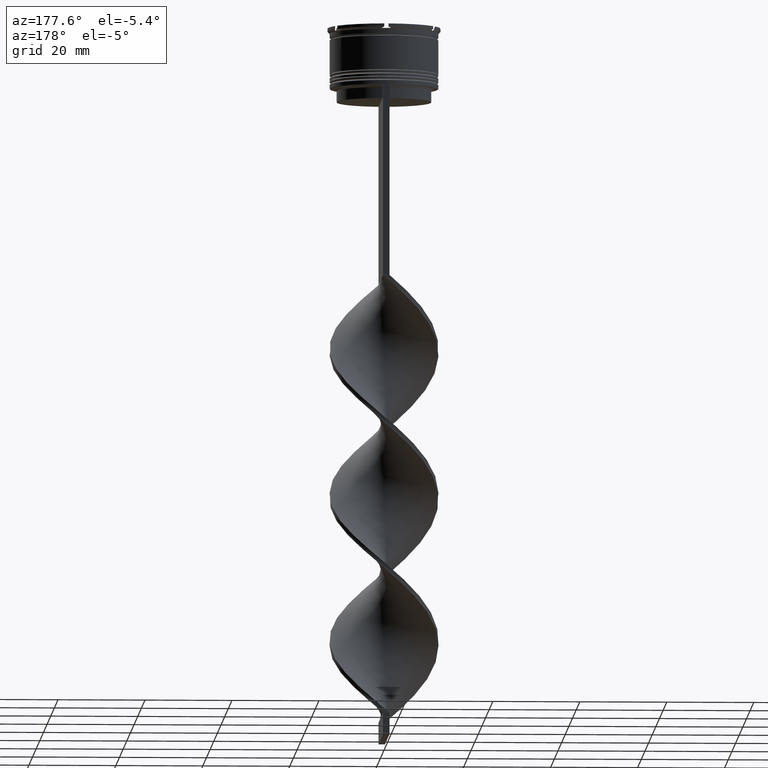
[diagram: clean part render]
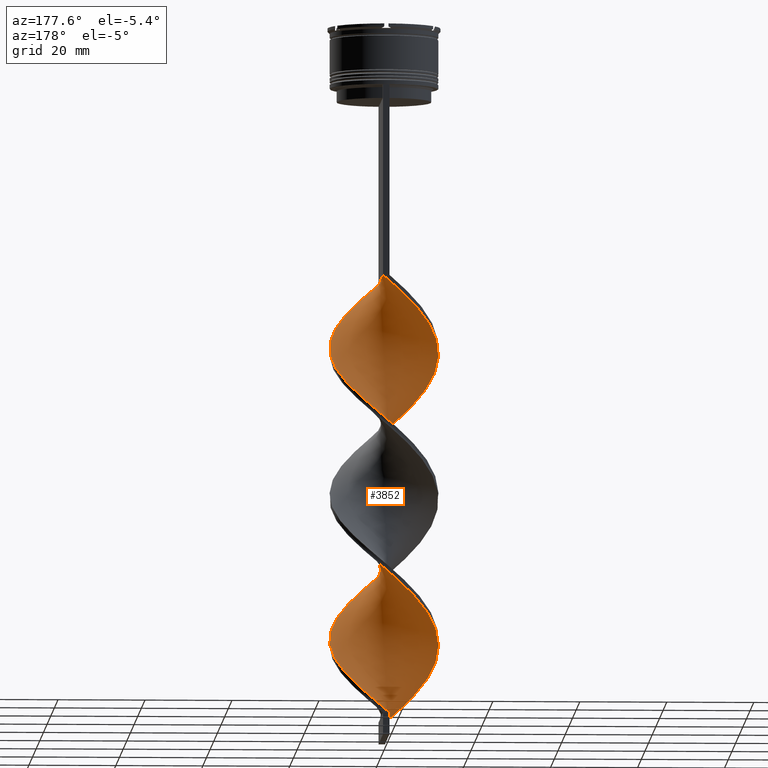
[diagram: same view with one face highlighted and labeled with its STEP entity id]
A machine part, auxiliary view. The second image highlights one B-rep face of the part: STEP entity #3852.
In plain terms, the highlighted face is a freeform B-spline surface patch.
Its self-contained STEP definition (entity closure, byte-faithful):
#7 = CARTESIAN_POINT ( 'NONE',  ( -8.787462363698281820, 8.921491198593773930, -134.3111111111111313 ) ) ;
#9 = CARTESIAN_POINT ( 'NONE',  ( 11.20031754730548279, -5.600480947161672773, -69.22222222222222854 ) ) ;
#12 = CARTESIAN_POINT ( 'NONE',  ( -6.740552907874707067, -10.55355136890619860, -118.6000000000000085 ) ) ;
#27 = CARTESIAN_POINT ( 'NONE',  ( 3.166767928522317810, -12.18672937812252499, -95.03333333333331723 ) ) ;
#29 = CARTESIAN_POINT ( 'NONE',  ( 12.35312734465267859, 2.052497212371872326, -75.95555555555554861 ) ) ;
#31 = CARTESIAN_POINT ( 'NONE',  ( 4.399048945215554340, 11.72437070283936045, -154.5111111111111200 ) ) ;
#45 = CARTESIAN_POINT ( 'NONE',  ( -3.166767928522319142, 12.18672937812252322, -128.7000000000000171 ) ) ;
#48 = CARTESIAN_POINT ( 'NONE',  ( -10.45031754730548279, 6.899519052838331667, -136.5555555555555713 ) ) ;
#51 = CARTESIAN_POINT ( 'NONE',  ( 8.970633266239079973, -8.835866163051415256, -133.1888888888889255 ) ) ;
#68 = CARTESIAN_POINT ( 'NONE',  ( -6.937523532635174739, -10.50788081788355832, -153.3888888888889142 ) ) ;
#70 = CARTESIAN_POINT ( 'NONE',  ( 11.78895181437690454, 4.423280136619385239, -112.9888888888888943 ) ) ;
#73 = CARTESIAN_POINT ( 'NONE',  ( 6.740552907874705291, 10.55355136890619860, -152.2666666666666799 ) ) ;
#85 = CARTESIAN_POINT ( 'NONE',  ( -0.7500000000000017764, -12.50000000000000000, -159.0000000000000000 ) ) ;
#87 = CARTESIAN_POINT ( 'NONE',  ( 0.7500000000000002220, -12.50000000000000000, -125.3333333333333570 ) ) ;
#106 = CARTESIAN_POINT ( 'NONE',  ( 12.50992003955415655, -0.5607143693194658329, -141.0444444444444514 ) ) ;
#130 = CARTESIAN_POINT ( 'NONE',  ( 5.769367131679453031, -11.11426573822566155, -129.8222222222222229 ) ) ;
#148 = CARTESIAN_POINT ( 'NONE',  ( -4.601210730723738429, -11.72065065856775767, -155.6333333333333542 ) ) ;
#150 = CARTESIAN_POINT ( 'NONE',  ( -12.11996919947063134, 3.149420042465479241, -105.1333333333333400 ) ) ;
#171 = CARTESIAN_POINT ( 'NONE',  ( 0.5638029408209590532, 12.57882817644926021, -90.54444444444445139 ) ) ;
#204 = CARTESIAN_POINT ( 'NONE',  ( -12.11996919947063134, 3.149420042465479241, -105.1333333333333400 ) ) ;
#222 = CARTESIAN_POINT ( 'NONE',  ( -0.7500000000000017764, -12.50000000000000000, -91.66666666666667140 ) ) ;
#225 = CARTESIAN_POINT ( 'NONE',  ( -4.601210730723734876, 11.72065065856775945, -95.03333333333331723 ) ) ;
#242 = CARTESIAN_POINT ( 'NONE',  ( 4.399048945215547235, -11.72437070283936400, -96.15555555555556566 ) ) ;
#262 = FACE_OUTER_BOUND ( 'NONE', #3630, .T. ) ;
#266 = CARTESIAN_POINT ( 'NONE',  ( 12.13740119476140045, 3.350863215071107515, -77.07777777777778283 ) ) ;
#278 = CARTESIAN_POINT ( 'NONE',  ( 4.399048945215554340, 11.72437070283936045, -154.5111111111111200 ) ) ;
#284 = CARTESIAN_POINT ( 'NONE',  ( -8.970633266239079973, -8.835866163051411704, -83.81111111111111711 ) ) ;
#288 = CARTESIAN_POINT ( 'NONE',  ( 7.954078399437126023, -9.671873490467488566, -64.73333333333333428 ) ) ;
#301 = CARTESIAN_POINT ( 'NONE',  ( 0.7500000000000002220, 12.50000000000000000, -125.3333333333333570 ) ) ;
#322 = CARTESIAN_POINT ( 'NONE',  ( 11.65644370790820794, -4.576004816908210593, -105.1333333333333400 ) ) ;
#325 = CARTESIAN_POINT ( 'NONE',  ( -11.17548622105502254, 5.801146418745307898, -137.6777777777777487 ) ) ;
#339 = CARTESIAN_POINT ( 'NONE',  ( -0.7500000000000017764, -12.50000000000000000, -159.0000000000000000 ) ) ;
#343 = CARTESIAN_POINT ( 'NONE',  ( -11.20031754730548457, -5.600480947161668333, -147.7777777777777715 ) ) ;
#345 = CARTESIAN_POINT ( 'NONE',  ( 12.11996919947063134, -3.149420042465478353, -71.46666666666668277 ) ) ;
#347 = CARTESIAN_POINT ( 'NONE',  ( -8.787462363698288925, -8.921491198593770378, -116.3555555555555685 ) ) ;
#361 = CARTESIAN_POINT ( 'NONE',  ( 10.45031754730548101, -6.899519052838334332, -102.8888888888888857 ) ) ;
#363 = CARTESIAN_POINT ( 'NONE',  ( -4.601210730723739317, -11.72065065856775945, -155.6333333333333258 ) ) ;
#365 = CARTESIAN_POINT ( 'NONE',  ( 2.063802940820955723, -12.42117182355074334, -126.4555555555555770 ) ) ;
#382 = CARTESIAN_POINT ( 'NONE',  ( 9.791158273236577614, 7.806773960377676680, -116.3555555555555685 ) ) ;
#386 = CARTESIAN_POINT ( 'NONE',  ( -3.166767928522322251, -12.18672937812252322, -121.9666666666666544 ) ) ;
#403 = CARTESIAN_POINT ( 'NONE',  ( -5.769367131679456584, -11.11426573822565977, -154.5111111111111200 ) ) ;
#418 = CARTESIAN_POINT ( 'NONE',  ( -3.332506835772350851, -12.07091124105925140, -156.7555555555555600 ) ) ;
#420 = CARTESIAN_POINT ( 'NONE',  ( -7.954078399437124247, 9.671873490467490342, -98.40000000000001990 ) ) ;
#433 = EDGE_CURVE ( 'NONE', #729, #3019, #2523, .T. ) ;
#440 = CARTESIAN_POINT ( 'NONE',  ( -5.631329961908790871, -11.26201202755619768, -119.7222222222222143 ) ) ;
#463 = CARTESIAN_POINT ( 'NONE',  ( 9.791158273236570508, -7.806773960377682009, -134.3111111111111313 ) ) ;
#482 = CARTESIAN_POINT ( 'NONE',  ( 6.740552907874705291, 10.55355136890619860, -84.93333333333333712 ) ) ;
#503 = CARTESIAN_POINT ( 'NONE',  ( -8.787462363698288925, -8.921491198593770378, -116.3555555555555685 ) ) ;
#504 = CARTESIAN_POINT ( 'NONE',  ( -12.50992003955415832, -0.5607143693194613920, -75.95555555555554861 ) ) ;
#513 = CARTESIAN_POINT ( 'NONE',  ( -0.7499999999999986677, 12.50000000000000000, -91.66666666666667140 ) ) ;
#530 = CARTESIAN_POINT ( 'NONE',  ( -5.769367131679456584, -11.11426573822565977, -87.17777777777779136 ) ) ;
#535 = CARTESIAN_POINT ( 'NONE',  ( -11.65644370790820972, -4.576004816908206152, -111.8666666666666742 ) ) ;
#555 = CARTESIAN_POINT ( 'NONE',  ( 0.7500000000000002220, -12.50000000000000000, -58.00000000000000000 ) ) ;
#569 = CARTESIAN_POINT ( 'NONE',  ( -8.787462363698281820, 8.921491198593773930, -66.97777777777777430 ) ) ;
#576 = CARTESIAN_POINT ( 'NONE',  ( 2.063802940820955723, -12.42117182355074334, -59.12222222222222712 ) ) ;
#591 = CARTESIAN_POINT ( 'NONE',  ( -12.56885349454395495, 0.7541312096726383585, -74.83333333333332860 ) ) ;
#599 = CARTESIAN_POINT ( 'NONE',  ( -12.13740119476140222, -3.350863215071100409, -110.7444444444444542 ) ) ;
#612 = CARTESIAN_POINT ( 'NONE',  ( -11.17548622105502076, 5.801146418745308786, -137.6777777777777487 ) ) ;
#614 = VERTEX_POINT ( 'NONE', #1421 ) ;
#616 = CARTESIAN_POINT ( 'NONE',  ( -9.725148873555946594, 7.997891686931353661, -68.10000000000002274 ) ) ;
#620 = CARTESIAN_POINT ( 'NONE',  ( 12.50992003955415655, -0.5607143693194658329, -141.0444444444444514 ) ) ;
#632 = CARTESIAN_POINT ( 'NONE',  ( 10.61168328023406815, 6.777681757703947873, -115.2333333333333343 ) ) ;
#634 = CARTESIAN_POINT ( 'NONE',  ( -7.849775853840620599, 9.845090710256195976, -133.1888888888889255 ) ) ;
#639 = CARTESIAN_POINT ( 'NONE',  ( -1.865285434671644094, -12.38277877728589083, -123.0888888888888886 ) ) ;
#651 = CARTESIAN_POINT ( 'NONE',  ( 4.601210730723740205, 11.72065065856775767, -121.9666666666666544 ) ) ;
#653 = CARTESIAN_POINT ( 'NONE',  ( 3.332506835772352627, 12.07091124105925140, -123.0888888888888886 ) ) ;
#670 = CARTESIAN_POINT ( 'NONE',  ( 3.332506835772352627, 12.07091124105925140, -123.0888888888888886 ) ) ;
#672 = CARTESIAN_POINT ( 'NONE',  ( -12.45098658456435992, -1.875559948311561920, -144.4111111111111541 ) ) ;
#675 = CARTESIAN_POINT ( 'NONE',  ( 12.35312734465267859, 2.052497212371872326, -143.2888888888889198 ) ) ;
#690 = CARTESIAN_POINT ( 'NONE',  ( -3.332506835772350851, -12.07091124105925140, -89.42222222222223138 ) ) ;
#692 = CARTESIAN_POINT ( 'NONE',  ( 7.954078399437128688, 9.671873490467486789, -118.6000000000000085 ) ) ;
#694 = CARTESIAN_POINT ( 'NONE',  ( 11.20031754730548279, -5.600480947161672773, -136.5555555555555713 ) ) ;
#712 = CARTESIAN_POINT ( 'NONE',  ( -12.13740119476139867, 3.350863215071111512, -139.9222222222222172 ) ) ;
#729 = VERTEX_POINT ( 'NONE', #3746 ) ;
#731 = CARTESIAN_POINT ( 'NONE',  ( -5.769367131679449479, 11.11426573822566333, -96.15555555555556566 ) ) ;
#749 = CARTESIAN_POINT ( 'NONE',  ( 8.970633266239079973, -8.835866163051415256, -133.1888888888889255 ) ) ;
#768 = CARTESIAN_POINT ( 'NONE',  ( -12.50992003955415832, 0.5607143693194728273, -107.3777777777777942 ) ) ;
#791 = CARTESIAN_POINT ( 'NONE',  ( -9.791158273236570508, 7.806773960377685562, -100.6444444444444599 ) ) ;
#812 = CARTESIAN_POINT ( 'NONE',  ( -3.166767928522322251, -12.18672937812252499, -121.9666666666666544 ) ) ;
#833 = EDGE_CURVE ( 'NONE', #614, #1149, #2553, .T. ) ;
#835 = CARTESIAN_POINT ( 'NONE',  ( -11.20031754730548457, -5.600480947161668333, -80.44444444444445708 ) ) ;
#838 = CARTESIAN_POINT ( 'NONE',  ( 11.17548622105501721, -5.801146418745314115, -104.0111111111111200 ) ) ;
#843 = CARTESIAN_POINT ( 'NONE',  ( 10.61168328023406637, -6.777681757703950538, -68.10000000000000853 ) ) ;
#859 = CARTESIAN_POINT ( 'NONE',  ( -5.631329961908784654, 11.26201202755620479, -63.61111111111112137 ) ) ;
#862 = CARTESIAN_POINT ( 'NONE',  ( 12.35312734465267503, -2.052497212371882984, -107.3777777777777942 ) ) ;
#867 = CARTESIAN_POINT ( 'NONE',  ( 9.725148873555948370, 7.997891686931350108, -81.56666666666666288 ) ) ;
#881 = CARTESIAN_POINT ( 'NONE',  ( -6.740552907874703514, 10.55355136890620038, -64.73333333333333428 ) ) ;
#884 = CARTESIAN_POINT ( 'NONE',  ( -8.970633266239076420, 8.835866163051417033, -99.52222222222223991 ) ) ;
#901 = CARTESIAN_POINT ( 'NONE',  ( -1.865285434671636988, 12.38277877728589260, -60.24444444444444713 ) ) ;
#905 = CARTESIAN_POINT ( 'NONE',  ( -6.937523532635168522, 10.50788081788356365, -97.27777777777779988 ) ) ;
#920 = CARTESIAN_POINT ( 'NONE',  ( 6.740552907874702626, -10.55355136890619860, -98.40000000000001990 ) ) ;
#924 = CARTESIAN_POINT ( 'NONE',  ( 6.740552907874702626, -10.55355136890619860, -98.40000000000001990 ) ) ;
#943 = CARTESIAN_POINT ( 'NONE',  ( -7.954078399437126912, -9.671873490467486789, -152.2666666666666799 ) ) ;
#946 = CARTESIAN_POINT ( 'NONE',  ( 9.791158273236570508, -7.806773960377682009, -66.97777777777777430 ) ) ;
#960 = CARTESIAN_POINT ( 'NONE',  ( 9.791158273236577614, 7.806773960377676680, -116.3555555555555685 ) ) ;
#963 = CARTESIAN_POINT ( 'NONE',  ( -9.791158273236575837, -7.806773960377678456, -150.0222222222222115 ) ) ;
#965 = CARTESIAN_POINT ( 'NONE',  ( 7.849775853840625039, 9.845090710256192423, -151.1444444444444457 ) ) ;
#979 = CARTESIAN_POINT ( 'NONE',  ( -6.740552907874703514, 10.55355136890620038, -132.0666666666666629 ) ) ;
#981 = CARTESIAN_POINT ( 'NONE',  ( -6.740552907874703514, 10.55355136890620038, -132.0666666666666629 ) ) ;
#985 = CARTESIAN_POINT ( 'NONE',  ( 11.78895181437690276, -4.423280136619393232, -137.6777777777777487 ) ) ;
#1001 = CARTESIAN_POINT ( 'NONE',  ( -12.13740119476139867, 3.350863215071111512, -139.9222222222222172 ) ) ;
#1003 = CARTESIAN_POINT ( 'NONE',  ( -10.61168328023406815, -6.777681757703948762, -148.8999999999999488 ) ) ;
#1004 = DIRECTION ( 'NONE',  ( 0.000000000000000000, 1.000000000000000000, 0.000000000000000000 ) ) ;
#1005 = CARTESIAN_POINT ( 'NONE',  ( -10.45031754730548812, -6.899519052838321009, -114.1111111111111285 ) ) ;
#1023 = CARTESIAN_POINT ( 'NONE',  ( -11.78895181437690276, -4.423280136619389680, -146.6555555555555657 ) ) ;
#1040 = CARTESIAN_POINT ( 'NONE',  ( 12.45098658456436169, -1.875559948311565917, -139.9222222222222172 ) ) ;
#1061 = CARTESIAN_POINT ( 'NONE',  ( 8.787462363698287149, 8.921491198593770378, -82.68888888888889710 ) ) ;
#1082 = CARTESIAN_POINT ( 'NONE',  ( -12.35312734465267859, -2.052497212371867885, -109.6222222222222342 ) ) ;
#1104 = CARTESIAN_POINT ( 'NONE',  ( -10.45031754730548812, -6.899519052838321009, -114.1111111111111285 ) ) ;
#1126 = CARTESIAN_POINT ( 'NONE',  ( -11.78895181437689743, 4.423280136619401226, -104.0111111111111200 ) ) ;
#1128 = CARTESIAN_POINT ( 'NONE',  ( -10.45031754730548279, 6.899519052838331667, -69.22222222222222854 ) ) ;
#1148 = CARTESIAN_POINT ( 'NONE',  ( -11.78895181437690276, -4.423280136619389680, -79.32222222222222285 ) ) ;
#1149 = VERTEX_POINT ( 'NONE', #1477 ) ;
#1156 = CARTESIAN_POINT ( 'NONE',  ( -12.45098658456436169, 1.875559948311569913, -106.2555555555555742 ) ) ;
#1174 = CARTESIAN_POINT ( 'NONE',  ( 11.65644370790820794, -4.576004816908210593, -105.1333333333333400 ) ) ;
#1178 = CARTESIAN_POINT ( 'NONE',  ( -12.56885349454395495, -0.7541312096726352499, -108.5000000000000000 ) ) ;
#1197 = CARTESIAN_POINT ( 'NONE',  ( -3.166767928522319142, 12.18672937812252499, -61.36666666666666003 ) ) ;
#1200 = CARTESIAN_POINT ( 'NONE',  ( 11.17548622105502076, 5.801146418745305233, -79.32222222222222285 ) ) ;
#1212 = CARTESIAN_POINT ( 'NONE',  ( -4.399048945215550788, 11.72437070283936222, -62.48888888888889426 ) ) ;
#1219 = CARTESIAN_POINT ( 'NONE',  ( -11.78895181437689743, 4.423280136619400338, -104.0111111111111057 ) ) ;
#1232 = CARTESIAN_POINT ( 'NONE',  ( 11.78895181437690454, 4.423280136619385239, -112.9888888888888943 ) ) ;
#1235 = CARTESIAN_POINT ( 'NONE',  ( 0.5638029408209505045, -12.57882817644926376, -92.78888888888889142 ) ) ;
#1238 = CARTESIAN_POINT ( 'NONE',  ( 7.849775853840625039, 9.845090710256192423, -83.81111111111111711 ) ) ;
#1253 = CARTESIAN_POINT ( 'NONE',  ( 8.787462363698281820, -8.921491198593777483, -100.6444444444444599 ) ) ;
#1255 = VECTOR ( 'NONE', #1004, 1000.000000000000000 ) ;
#1258 = CARTESIAN_POINT ( 'NONE',  ( 6.937523532635172074, -10.50788081788356187, -63.61111111111111427 ) ) ;
#1277 = CARTESIAN_POINT ( 'NONE',  ( -9.725148873555948370, 7.997891686931351884, -135.4333333333333371 ) ) ;
#1279 = CARTESIAN_POINT ( 'NONE',  ( 11.20031754730548812, 5.600480947161662115, -114.1111111111111285 ) ) ;
#1282 = CARTESIAN_POINT ( 'NONE',  ( 5.769367131679453031, -11.11426573822566155, -129.8222222222222229 ) ) ;
#1294 = CARTESIAN_POINT ( 'NONE',  ( -12.35312734465267681, 2.052497212371875879, -141.0444444444444514 ) ) ;
#1296 = CARTESIAN_POINT ( 'NONE',  ( 12.13740119476140045, 3.350863215071107515, -77.07777777777778283 ) ) ;
#1299 = CARTESIAN_POINT ( 'NONE',  ( 3.166767928522320474, 12.18672937812252322, -155.6333333333333542 ) ) ;
#1315 = CARTESIAN_POINT ( 'NONE',  ( 0.5638029408209503934, -12.57882817644926199, -92.78888888888889142 ) ) ;
#1317 = CARTESIAN_POINT ( 'NONE',  ( 12.56885349454395495, -0.7541312096726399128, -108.5000000000000000 ) ) ;
#1323 = CARTESIAN_POINT ( 'NONE',  ( 12.11996919947063134, -3.149420042465478353, -138.8000000000000114 ) ) ;
#1340 = CARTESIAN_POINT ( 'NONE',  ( -11.20031754730548457, -5.600480947161668333, -147.7777777777777715 ) ) ;
#1356 = CARTESIAN_POINT ( 'NONE',  ( -12.56885349454395495, -0.7541312096726353609, -108.5000000000000000 ) ) ;
#1374 = CARTESIAN_POINT ( 'NONE',  ( 10.45031754730548457, 6.899519052838327227, -80.44444444444445708 ) ) ;
#1397 = CARTESIAN_POINT ( 'NONE',  ( 12.35312734465267859, 2.052497212371872326, -143.2888888888889198 ) ) ;
#1419 = CARTESIAN_POINT ( 'NONE',  ( 9.725148873555946594, 7.997891686931350996, -148.8999999999999488 ) ) ;
#1421 = CARTESIAN_POINT ( 'NONE',  ( 0.7500000000000002220, 12.50000000000000000, -58.00000000000000000 ) ) ;
#1441 = CARTESIAN_POINT ( 'NONE',  ( -12.45098658456436169, 1.875559948311569691, -106.2555555555555742 ) ) ;
#1468 = CARTESIAN_POINT ( 'NONE',  ( 1.865285434671642317, 12.38277877728589083, -156.7555555555555600 ) ) ;
#1475 = CARTESIAN_POINT ( 'NONE',  ( 11.78895181437690276, -4.423280136619393232, -70.34444444444444855 ) ) ;
#1477 = CARTESIAN_POINT ( 'NONE',  ( -0.7500000000000017764, -12.50000000000000000, -159.0000000000000000 ) ) ;
#1491 = CARTESIAN_POINT ( 'NONE',  ( 5.631329961908781989, -11.26201202755620479, -97.27777777777778567 ) ) ;
#1495 = CARTESIAN_POINT ( 'NONE',  ( 3.332506835772345966, -12.07091124105925317, -60.24444444444444713 ) ) ;
#1512 = CARTESIAN_POINT ( 'NONE',  ( 8.787462363698281820, -8.921491198593777483, -100.6444444444444599 ) ) ;
#1527 = CARTESIAN_POINT ( 'NONE',  ( 8.787462363698287149, 8.921491198593770378, -150.0222222222222115 ) ) ;
#1534 = CARTESIAN_POINT ( 'NONE',  ( -8.787462363698281820, 8.921491198593773930, -66.97777777777777430 ) ) ;
#1554 = CARTESIAN_POINT ( 'NONE',  ( -0.7500000000000017764, -12.50000000000000000, -91.66666666666667140 ) ) ;
#1557 = CARTESIAN_POINT ( 'NONE',  ( -7.954078399437126912, -9.671873490467486789, -84.93333333333333712 ) ) ;
#1561 = CARTESIAN_POINT ( 'NONE',  ( 4.399048945215554340, 11.72437070283936045, -87.17777777777779136 ) ) ;
#1573 = CARTESIAN_POINT ( 'NONE',  ( -11.78895181437690276, -4.423280136619389680, -146.6555555555555657 ) ) ;
#1597 = CARTESIAN_POINT ( 'NONE',  ( -6.937523532635174739, -10.50788081788355832, -86.05555555555557135 ) ) ;
#1599 = CARTESIAN_POINT ( 'NONE',  ( 2.063802940820956167, -12.42117182355074334, -59.12222222222222712 ) ) ;
#1616 = CARTESIAN_POINT ( 'NONE',  ( -12.50992003955415832, -0.5607143693194613920, -143.2888888888889198 ) ) ;
#1618 = CARTESIAN_POINT ( 'NONE',  ( 12.50992003955415655, -0.5607143693194658329, -73.71111111111112280 ) ) ;
#1620 = CARTESIAN_POINT ( 'NONE',  ( 12.45098658456436169, -1.875559948311565694, -139.9222222222222172 ) ) ;
#1627 = CARTESIAN_POINT ( 'NONE',  ( -0.7499999999999986677, 12.50000000000000000, -159.0000000000000000 ) ) ;
#1632 = CARTESIAN_POINT ( 'NONE',  ( -4.601210730723738429, -11.72065065856775767, -88.29999999999998295 ) ) ;
#1634 = CARTESIAN_POINT ( 'NONE',  ( -1.865285434671636988, 12.38277877728589260, -127.5777777777777828 ) ) ;
#1636 = CARTESIAN_POINT ( 'NONE',  ( -11.17548622105502254, -5.801146418745300792, -112.9888888888888943 ) ) ;
#1653 = CARTESIAN_POINT ( 'NONE',  ( -0.5638029408209555005, 12.57882817644926021, -126.4555555555555628 ) ) ;
#1673 = CARTESIAN_POINT ( 'NONE',  ( 5.769367131679453031, -11.11426573822566155, -62.48888888888889426 ) ) ;
#1692 = CARTESIAN_POINT ( 'NONE',  ( -9.725148873555948370, -7.997891686931350996, -115.2333333333333343 ) ) ;
#1713 = CARTESIAN_POINT ( 'NONE',  ( 1.865285434671642317, 12.38277877728589083, -89.42222222222223138 ) ) ;
#1736 = CARTESIAN_POINT ( 'NONE',  ( 11.17548622105502254, 5.801146418745304345, -146.6555555555555657 ) ) ;
#1758 = CARTESIAN_POINT ( 'NONE',  ( 7.849775853840625039, 9.845090710256194200, -83.81111111111111711 ) ) ;
#1779 = CARTESIAN_POINT ( 'NONE',  ( -7.849775853840630369, -9.845090710256190647, -117.4777777777777885 ) ) ;
#1781 = CARTESIAN_POINT ( 'NONE',  ( -12.45098658456435992, -1.875559948311561920, -77.07777777777778283 ) ) ;
#1789 = CARTESIAN_POINT ( 'NONE',  ( -10.61168328023406460, 6.777681757703952314, -101.7666666666666515 ) ) ;
#1803 = CARTESIAN_POINT ( 'NONE',  ( 6.740552907874705291, 10.55355136890619860, -152.2666666666666799 ) ) ;
#1827 = CARTESIAN_POINT ( 'NONE',  ( 1.865285434671633880, -12.38277877728589260, -93.91111111111111143 ) ) ;
#1831 = CARTESIAN_POINT ( 'NONE',  ( 9.791158273236570508, -7.806773960377682009, -66.97777777777777430 ) ) ;
#1845 = CARTESIAN_POINT ( 'NONE',  ( -0.5638029408209555005, 12.57882817644925844, -59.12222222222222712 ) ) ;
#1852 = CARTESIAN_POINT ( 'NONE',  ( 5.769367131679453031, -11.11426573822566155, -62.48888888888889426 ) ) ;
#1872 = CARTESIAN_POINT ( 'NONE',  ( -10.61168328023406815, -6.777681757703948762, -81.56666666666664867 ) ) ;
#1888 = CARTESIAN_POINT ( 'NONE',  ( -12.45098658456435992, -1.875559948311561920, -144.4111111111111256 ) ) ;
#1893 = CARTESIAN_POINT ( 'NONE',  ( -3.332506835772350851, -12.07091124105925140, -89.42222222222223138 ) ) ;
#1896 = CARTESIAN_POINT ( 'NONE',  ( -4.399048945215561446, -11.72437070283935689, -120.8444444444444485 ) ) ;
#1908 = CARTESIAN_POINT ( 'NONE',  ( 2.063802940820966825, 12.42117182355074334, -124.2111111111111370 ) ) ;
#1911 = CARTESIAN_POINT ( 'NONE',  ( -12.56885349454395495, 0.7541312096726383585, -142.1666666666666856 ) ) ;
#1915 = CARTESIAN_POINT ( 'NONE',  ( 5.631329961908789983, 11.26201202755619946, -153.3888888888889142 ) ) ;
#1929 = CARTESIAN_POINT ( 'NONE',  ( -10.61168328023406637, -6.777681757703948762, -81.56666666666666288 ) ) ;
#1932 = CARTESIAN_POINT ( 'NONE',  ( 0.7500000000000002220, 12.50000000000000000, -125.3333333333333570 ) ) ;
#1935 = CARTESIAN_POINT ( 'NONE',  ( 12.56885349454395495, 0.7541312096726368042, -142.1666666666666856 ) ) ;
#1948 = CARTESIAN_POINT ( 'NONE',  ( -0.5638029408209555005, 12.57882817644925844, -126.4555555555555770 ) ) ;
#1950 = CARTESIAN_POINT ( 'NONE',  ( 10.61168328023406993, 6.777681757703947873, -115.2333333333333343 ) ) ;
#1952 = CARTESIAN_POINT ( 'NONE',  ( 11.17548622105502076, 5.801146418745305233, -146.6555555555555657 ) ) ;
#1969 = CARTESIAN_POINT ( 'NONE',  ( 12.35312734465267503, -2.052497212371882984, -107.3777777777777942 ) ) ;
#1971 = CARTESIAN_POINT ( 'NONE',  ( -11.65644370790820794, 4.576004816908208817, -138.8000000000000114 ) ) ;
#1973 = CARTESIAN_POINT ( 'NONE',  ( 8.787462363698287149, 8.921491198593770378, -150.0222222222222115 ) ) ;
#1992 = CARTESIAN_POINT ( 'NONE',  ( 3.332506835772345966, -12.07091124105925317, -60.24444444444444713 ) ) ;
#2008 = CARTESIAN_POINT ( 'NONE',  ( -8.970633266239076420, 8.835866163051417033, -99.52222222222223991 ) ) ;
#2030 = CARTESIAN_POINT ( 'NONE',  ( 3.332506835772345966, -12.07091124105925317, -127.5777777777777828 ) ) ;
#2052 = CARTESIAN_POINT ( 'NONE',  ( -11.65644370790820972, -4.576004816908206152, -111.8666666666666742 ) ) ;
#2076 = CARTESIAN_POINT ( 'NONE',  ( 7.954078399437126023, -9.671873490467488566, -132.0666666666666629 ) ) ;
#2099 = CARTESIAN_POINT ( 'NONE',  ( -1.865285434671644094, -12.38277877728589083, -123.0888888888888886 ) ) ;
#2107 = CARTESIAN_POINT ( 'NONE',  ( 8.970633266239079973, -8.835866163051415256, -65.85555555555555429 ) ) ;
#2126 = CARTESIAN_POINT ( 'NONE',  ( -10.45031754730548279, 6.899519052838331667, -69.22222222222222854 ) ) ;
#2130 = CARTESIAN_POINT ( 'NONE',  ( 12.50992003955415655, -0.5607143693194658329, -73.71111111111112280 ) ) ;
#2144 = CARTESIAN_POINT ( 'NONE',  ( -0.7499999999999986677, 12.50000000000000000, -159.0000000000000000 ) ) ;
#2149 = CARTESIAN_POINT ( 'NONE',  ( -12.56885349454395495, 0.7541312096726383585, -74.83333333333334281 ) ) ;
#2169 = CARTESIAN_POINT ( 'NONE',  ( -11.20031754730548457, -5.600480947161668333, -80.44444444444445708 ) ) ;
#2172 = CARTESIAN_POINT ( 'NONE',  ( -9.791158273236570508, 7.806773960377685562, -100.6444444444444599 ) ) ;
#2184 = CARTESIAN_POINT ( 'NONE',  ( -11.17548622105502076, 5.801146418745308786, -70.34444444444444855 ) ) ;
#2210 = CARTESIAN_POINT ( 'NONE',  ( -5.631329961908784654, 11.26201202755620479, -130.9444444444444571 ) ) ;
#2213 = CARTESIAN_POINT ( 'NONE',  ( -11.65644370790820794, 4.576004816908208817, -71.46666666666668277 ) ) ;
#2218 = CARTESIAN_POINT ( 'NONE',  ( -9.725148873555948370, -7.997891686931350108, -115.2333333333333343 ) ) ;
#2228 = CARTESIAN_POINT ( 'NONE',  ( 1.865285434671633880, -12.38277877728589260, -93.91111111111111143 ) ) ;
#2230 = CARTESIAN_POINT ( 'NONE',  ( -0.7500000000000017764, -12.50000000000000000, -159.0000000000000000 ) ) ;
#2245 = CARTESIAN_POINT ( 'NONE',  ( 8.970633266239085302, 8.835866163051404598, -117.4777777777777885 ) ) ;
#2247 = CARTESIAN_POINT ( 'NONE',  ( 4.601210730723737541, -11.72065065856775945, -61.36666666666666003 ) ) ;
#2265 = CARTESIAN_POINT ( 'NONE',  ( -7.954078399437126912, -9.671873490467486789, -84.93333333333333712 ) ) ;
#2268 = CARTESIAN_POINT ( 'NONE',  ( -12.35312734465267681, 2.052497212371875879, -141.0444444444444514 ) ) ;
#2287 = CARTESIAN_POINT ( 'NONE',  ( 9.725148873555946594, -7.997891686931353661, -101.7666666666666515 ) ) ;
#2289 = CARTESIAN_POINT ( 'NONE',  ( 2.063802940820966825, 12.42117182355074334, -124.2111111111111370 ) ) ;
#2291 = CARTESIAN_POINT ( 'NONE',  ( 6.937523532635171186, -10.50788081788356187, -130.9444444444444571 ) ) ;
#2308 = CARTESIAN_POINT ( 'NONE',  ( -2.063802940820959275, -12.42117182355074334, -157.8777777777777942 ) ) ;
#2329 = CARTESIAN_POINT ( 'NONE',  ( -2.063802940820951726, 12.42117182355074689, -92.78888888888889142 ) ) ;
#2348 = CARTESIAN_POINT ( 'NONE',  ( -6.740552907874707067, -10.55355136890619860, -118.6000000000000085 ) ) ;
#2367 = CARTESIAN_POINT ( 'NONE',  ( -6.937523532635169410, 10.50788081788356365, -97.27777777777778567 ) ) ;
#2387 = CARTESIAN_POINT ( 'NONE',  ( -2.063802940820959275, -12.42117182355074334, -157.8777777777777942 ) ) ;
#2389 = CARTESIAN_POINT ( 'NONE',  ( 5.631329961908789983, 11.26201202755619768, -86.05555555555557135 ) ) ;
#2411 = CARTESIAN_POINT ( 'NONE',  ( 11.17548622105502254, 5.801146418745304345, -79.32222222222222285 ) ) ;
#2412 = CARTESIAN_POINT ( 'NONE',  ( -11.65644370790820794, 4.576004816908208817, -71.46666666666668277 ) ) ;
#2437 = CARTESIAN_POINT ( 'NONE',  ( 9.725148873555944817, -7.997891686931354549, -101.7666666666666515 ) ) ;
#2441 = CARTESIAN_POINT ( 'NONE',  ( -12.50992003955415832, 0.5607143693194728273, -107.3777777777777942 ) ) ;
#2463 = CARTESIAN_POINT ( 'NONE',  ( -12.35312734465267859, -2.052497212371867885, -109.6222222222222342 ) ) ;
#2470 = CARTESIAN_POINT ( 'NONE',  ( -0.7500000000000007772, -4.166666666666667851, -159.0000000000000000 ) ) ;
#2479 = CARTESIAN_POINT ( 'NONE',  ( -12.13740119476139867, 3.350863215071111512, -72.58888888888890278 ) ) ;
#2483 = CARTESIAN_POINT ( 'NONE',  ( 6.740552907874705291, 10.55355136890619860, -84.93333333333333712 ) ) ;
#2498 = CARTESIAN_POINT ( 'NONE',  ( -4.399048945215550788, 11.72437070283936222, -62.48888888888889426 ) ) ;
#2511 = EDGE_CURVE ( 'NONE', #729, #614, #3230, .T. ) ;
#2516 = CARTESIAN_POINT ( 'NONE',  ( 12.45098658456436169, 1.875559948311554148, -110.7444444444444542 ) ) ;
#2519 = CARTESIAN_POINT ( 'NONE',  ( 3.166767928522317810, -12.18672937812252677, -95.03333333333331723 ) ) ;
#2523 =( BOUNDED_CURVE ( )  B_SPLINE_CURVE ( 2, ( #555, #576, #1495, #2802, #1852, #3792, #288, #2107, #1831, #843, #3134, #1475, #4115, #4076, #2130, #3155, #3771, #266, #3091, #1200, #2823, #867, #3472, #1238, #2483, #3385, #1561, #4049, #4097, #3411, #513, #2759, #3753, #225, #2524, #905, #3112, #884, #2172, #1789, #3071, #1219, #204, #1156, #2441, #1178, #2463, #599, #535, #1636, #1005, #2218, #347, #2918, #12, #3817, #1896, #386, #639, #3512, #2941, #365, #3494, #2884, #1282, #2291, #2864, #51, #3566, #3547, #694, #985, #1323, #1620, #620, #1935, #675, #2901, #2605, #1952, #2547, #3215, #1973, #965, #73, #1915, #31, #1299, #3177, #3193, #3836 ),
 .UNSPECIFIED., .F., .T. ) 
 B_SPLINE_CURVE_WITH_KNOTS ( ( 3, 2, 2, 2, 2, 2, 2, 2, 2, 2, 2, 2, 2, 2, 2, 2, 2, 2, 2, 2, 2, 2, 2, 2, 2, 2, 2, 2, 2, 2, 2, 2, 2, 2, 2, 2, 2, 2, 2, 2, 2, 2, 2, 2, 2, 3 ),
 ( 0.000000000000000000, 0.01666666666666666644, 0.03333333333333333287, 0.05000000000000000971, 0.06666666666666666574, 0.08333333333333332871, 0.1000000000000000194, 0.1166666666666666546, 0.1333333333333333315, 0.1499999999999999944, 0.1666666666666666574, 0.1833333333333333204, 0.2000000000000000389, 0.2166666666666666741, 0.2333333333333333093, 0.2500000000000000000, 0.2666666666666666630, 0.2833333333333333259, 0.2999999999999999889, 0.3166666666666666519, 0.3333333333333333148, 0.3499999999999999223, 0.3666666666666666408, 0.3833333333333333592, 0.4000000000000000777, 0.4166666666666666852, 0.4333333333333333481, 0.4500000000000000111, 0.4666666666666666186, 0.4833333333333333370, 0.5000000000000000000, 0.5166666666666667185, 0.5333333333333333259, 0.5500000000000000444, 0.5666666666666666519, 0.5833333333333333703, 0.5999999999999999778, 0.6166666666666666963, 0.6333333333333333037, 0.6500000000000000222, 0.6666666666666666297, 0.6833333333333332371, 0.6999999999999998446, 0.7166666666666666741, 0.7333333333333332815, 0.7500000000000000000 ),
 .UNSPECIFIED. ) 
 CURVE ( )  GEOMETRIC_REPRESENTATION_ITEM ( )  RATIONAL_B_SPLINE_CURVE ( ( 1.000000000000000000, 0.9945218953682732899, 1.000000000000000000, 0.9945218953682732899, 1.000000000000000000, 0.9945218953682732899, 1.000000000000000000, 0.9945218953682732899, 1.000000000000000000, 0.9945218953682732899, 1.000000000000000000, 0.9945218953682732899, 1.000000000000000000, 0.9945218953682732899, 1.000000000000000000, 0.9945218953682732899, 1.000000000000000000, 0.9945218953682732899, 1.000000000000000000, 0.9945218953682732899, 1.000000000000000000, 0.9945218953682732899, 1.000000000000000000, 0.9945218953682732899, 1.000000000000000000, 0.9945218953682732899, 1.000000000000000000, 0.9945218953682732899, 1.000000000000000000, 0.9945218953682732899, 1.000000000000000000, 0.9945218953682732899, 1.000000000000000000, 0.9945218953682732899, 1.000000000000000000, 0.9945218953682732899, 1.000000000000000000, 0.9945218953682732899, 1.000000000000000000, 0.9945218953682732899, 1.000000000000000000, 0.9945218953682732899, 1.000000000000000000, 0.9945218953682732899, 1.000000000000000000, 0.9945218953682732899, 1.000000000000000000, 0.9945218953682732899, 1.000000000000000000, 0.9945218953682732899, 1.000000000000000000, 0.9945218953682732899, 1.000000000000000000, 0.9945218953682732899, 1.000000000000000000, 0.9945218953682732899, 1.000000000000000000, 0.9945218953682732899, 1.000000000000000000, 0.9945218953682732899, 1.000000000000000000, 0.9945218953682732899, 1.000000000000000000, 0.9945218953682732899, 1.000000000000000000, 0.9945218953682732899, 1.000000000000000000, 0.9945218953682732899, 1.000000000000000000, 0.9945218953682732899, 1.000000000000000000, 0.9945218953682732899, 1.000000000000000000, 0.9945218953682732899, 1.000000000000000000, 0.9945218953682732899, 1.000000000000000000, 0.9945218953682732899, 1.000000000000000000, 0.9945218953682732899, 1.000000000000000000, 0.9945218953682732899, 1.000000000000000000, 0.9945218953682732899, 1.000000000000000000, 0.9945218953682732899, 1.000000000000000000, 0.9945218953682732899, 1.000000000000000000, 0.9945218953682732899, 1.000000000000000000 ) ) 
 REPRESENTATION_ITEM ( '' )  );
#2524 = CARTESIAN_POINT ( 'NONE',  ( -5.769367131679449479, 11.11426573822566333, -96.15555555555556566 ) ) ;
#2540 = CARTESIAN_POINT ( 'NONE',  ( -8.970633266239079973, -8.835866163051411704, -151.1444444444444457 ) ) ;
#2543 = CARTESIAN_POINT ( 'NONE',  ( 7.954078399437126023, -9.671873490467488566, -64.73333333333333428 ) ) ;
#2547 = CARTESIAN_POINT ( 'NONE',  ( 10.45031754730548457, 6.899519052838327227, -147.7777777777777715 ) ) ;
#2553 =( BOUNDED_CURVE ( )  B_SPLINE_CURVE ( 2, ( #2795, #1845, #3724, #3444, #1212, #859, #4068, #2774, #569, #3765, #1128, #2184, #2412, #3466, #4023, #591, #504, #1781, #3062, #1148, #835, #1929, #3869, #2896, #2265, #1597, #3188, #1632, #690, #3523, #1554, #1315, #2228, #27, #3169, #3246, #920, #3831, #1253, #2287, #361, #3810, #322, #2856, #1969, #2836, #2562, #2516, #4109, #1232, #3505, #632, #960, #2245, #3543, #2913, #3786, #651, #670, #1908, #301, #1948, #2878, #45, #4130, #2210, #979, #3487, #7, #1277, #2599, #612, #3227, #1001, #1294, #3561, #1616, #1888, #3210, #1573, #343, #2579, #3847, #2540, #943, #68, #2659, #148, #418, #2387, #85 ),
 .UNSPECIFIED., .F., .T. ) 
 B_SPLINE_CURVE_WITH_KNOTS ( ( 3, 2, 2, 2, 2, 2, 2, 2, 2, 2, 2, 2, 2, 2, 2, 2, 2, 2, 2, 2, 2, 2, 2, 2, 2, 2, 2, 2, 2, 2, 2, 2, 2, 2, 2, 2, 2, 2, 2, 2, 2, 2, 2, 2, 2, 3 ),
 ( 0.000000000000000000, 0.01666666666666666644, 0.03333333333333333287, 0.05000000000000000971, 0.06666666666666666574, 0.08333333333333332871, 0.1000000000000000194, 0.1166666666666666546, 0.1333333333333333315, 0.1499999999999999944, 0.1666666666666666574, 0.1833333333333333204, 0.2000000000000000389, 0.2166666666666666741, 0.2333333333333333093, 0.2500000000000000000, 0.2666666666666666630, 0.2833333333333333259, 0.2999999999999999889, 0.3166666666666666519, 0.3333333333333333148, 0.3499999999999999223, 0.3666666666666666408, 0.3833333333333333592, 0.4000000000000000777, 0.4166666666666666852, 0.4333333333333333481, 0.4500000000000000111, 0.4666666666666666186, 0.4833333333333333370, 0.5000000000000000000, 0.5166666666666667185, 0.5333333333333333259, 0.5500000000000000444, 0.5666666666666666519, 0.5833333333333333703, 0.5999999999999999778, 0.6166666666666666963, 0.6333333333333333037, 0.6500000000000000222, 0.6666666666666666297, 0.6833333333333332371, 0.6999999999999998446, 0.7166666666666666741, 0.7333333333333332815, 0.7500000000000000000 ),
 .UNSPECIFIED. ) 
 CURVE ( )  GEOMETRIC_REPRESENTATION_ITEM ( )  RATIONAL_B_SPLINE_CURVE ( ( 1.000000000000000000, 0.9945218953682732899, 1.000000000000000000, 0.9945218953682732899, 1.000000000000000000, 0.9945218953682732899, 1.000000000000000000, 0.9945218953682732899, 1.000000000000000000, 0.9945218953682732899, 1.000000000000000000, 0.9945218953682732899, 1.000000000000000000, 0.9945218953682732899, 1.000000000000000000, 0.9945218953682732899, 1.000000000000000000, 0.9945218953682732899, 1.000000000000000000, 0.9945218953682732899, 1.000000000000000000, 0.9945218953682732899, 1.000000000000000000, 0.9945218953682732899, 1.000000000000000000, 0.9945218953682732899, 1.000000000000000000, 0.9945218953682732899, 1.000000000000000000, 0.9945218953682732899, 1.000000000000000000, 0.9945218953682732899, 1.000000000000000000, 0.9945218953682732899, 1.000000000000000000, 0.9945218953682732899, 1.000000000000000000, 0.9945218953682732899, 1.000000000000000000, 0.9945218953682732899, 1.000000000000000000, 0.9945218953682732899, 1.000000000000000000, 0.9945218953682732899, 1.000000000000000000, 0.9945218953682732899, 1.000000000000000000, 0.9945218953682732899, 1.000000000000000000, 0.9945218953682732899, 1.000000000000000000, 0.9945218953682732899, 1.000000000000000000, 0.9945218953682732899, 1.000000000000000000, 0.9945218953682732899, 1.000000000000000000, 0.9945218953682732899, 1.000000000000000000, 0.9945218953682732899, 1.000000000000000000, 0.9945218953682732899, 1.000000000000000000, 0.9945218953682732899, 1.000000000000000000, 0.9945218953682732899, 1.000000000000000000, 0.9945218953682732899, 1.000000000000000000, 0.9945218953682732899, 1.000000000000000000, 0.9945218953682732899, 1.000000000000000000, 0.9945218953682732899, 1.000000000000000000, 0.9945218953682732899, 1.000000000000000000, 0.9945218953682732899, 1.000000000000000000, 0.9945218953682732899, 1.000000000000000000, 0.9945218953682732899, 1.000000000000000000, 0.9945218953682732899, 1.000000000000000000, 0.9945218953682732899, 1.000000000000000000, 0.9945218953682732899, 1.000000000000000000, 0.9945218953682732899, 1.000000000000000000 ) ) 
 REPRESENTATION_ITEM ( '' )  );
#2562 = CARTESIAN_POINT ( 'NONE',  ( 12.50992003955415832, 0.5607143693194570622, -109.6222222222222342 ) ) ;
#2564 = CARTESIAN_POINT ( 'NONE',  ( 11.78895181437690276, -4.423280136619393232, -70.34444444444443434 ) ) ;
#2579 = CARTESIAN_POINT ( 'NONE',  ( -10.61168328023406637, -6.777681757703948762, -148.8999999999999773 ) ) ;
#2582 = CARTESIAN_POINT ( 'NONE',  ( 5.769367131679463689, 11.11426573822565622, -120.8444444444444485 ) ) ;
#2599 = CARTESIAN_POINT ( 'NONE',  ( -10.45031754730548279, 6.899519052838331667, -136.5555555555555713 ) ) ;
#2601 = CARTESIAN_POINT ( 'NONE',  ( 4.601210730723740205, 11.72065065856775945, -121.9666666666666544 ) ) ;
#2605 = CARTESIAN_POINT ( 'NONE',  ( 11.65644370790820972, 4.576004816908207928, -145.5333333333333599 ) ) ;
#2623 = CARTESIAN_POINT ( 'NONE',  ( 6.937523532635176515, 10.50788081788355832, -119.7222222222222143 ) ) ;
#2641 = CARTESIAN_POINT ( 'NONE',  ( 4.601210730723737541, -11.72065065856775945, -128.6999999999999886 ) ) ;
#2659 = CARTESIAN_POINT ( 'NONE',  ( -5.769367131679456584, -11.11426573822565977, -154.5111111111111200 ) ) ;
#2661 = CARTESIAN_POINT ( 'NONE',  ( 4.399048945215554340, 11.72437070283936045, -87.17777777777779136 ) ) ;
#2682 = CARTESIAN_POINT ( 'NONE',  ( 12.13740119476140045, 3.350863215071107515, -144.4111111111111541 ) ) ;
#2705 = CARTESIAN_POINT ( 'NONE',  ( -11.20031754730548101, 5.600480947161677214, -102.8888888888888857 ) ) ;
#2729 = CARTESIAN_POINT ( 'NONE',  ( -10.61168328023406637, 6.777681757703952314, -101.7666666666666515 ) ) ;
#2752 = CARTESIAN_POINT ( 'NONE',  ( 3.166767928522320918, 12.18672937812252499, -155.6333333333333258 ) ) ;
#2759 = CARTESIAN_POINT ( 'NONE',  ( -2.063802940820951726, 12.42117182355074689, -92.78888888888889142 ) ) ;
#2774 = CARTESIAN_POINT ( 'NONE',  ( -7.849775853840621487, 9.845090710256194200, -65.85555555555555429 ) ) ;
#2795 = CARTESIAN_POINT ( 'NONE',  ( 0.7500000000000002220, 12.50000000000000000, -58.00000000000000000 ) ) ;
#2798 = CARTESIAN_POINT ( 'NONE',  ( 10.45031754730548101, -6.899519052838334332, -102.8888888888888857 ) ) ;
#2802 = CARTESIAN_POINT ( 'NONE',  ( 4.601210730723736653, -11.72065065856775767, -61.36666666666666003 ) ) ;
#2820 = CARTESIAN_POINT ( 'NONE',  ( -11.17548622105502254, 5.801146418745307898, -70.34444444444443434 ) ) ;
#2823 = CARTESIAN_POINT ( 'NONE',  ( 10.45031754730548457, 6.899519052838327227, -80.44444444444445708 ) ) ;
#2828 = B_SPLINE_CURVE_WITH_KNOTS ( 'NONE', 3,
 ( #339, #2470, #3741, #3760 ),
 .UNSPECIFIED., .F., .F.,
 ( 4, 4 ),
 ( 0.000000000000000000, 1.000000000000000000 ),
 .UNSPECIFIED. ) ;
#2836 = CARTESIAN_POINT ( 'NONE',  ( 12.56885349454395495, -0.7541312096726398018, -108.5000000000000000 ) ) ;
#2837 = ORIENTED_EDGE ( 'NONE', *, *, #433, .T. ) ;
#2856 = CARTESIAN_POINT ( 'NONE',  ( 12.13740119476139867, -3.350863215071115953, -106.2555555555555742 ) ) ;
#2859 = CARTESIAN_POINT ( 'NONE',  ( -5.631329961908784654, 11.26201202755620123, -63.61111111111111427 ) ) ;
#2864 = CARTESIAN_POINT ( 'NONE',  ( 7.954078399437126023, -9.671873490467488566, -132.0666666666666629 ) ) ;
#2878 = CARTESIAN_POINT ( 'NONE',  ( -1.865285434671636988, 12.38277877728589260, -127.5777777777777828 ) ) ;
#2880 = CARTESIAN_POINT ( 'NONE',  ( -12.11996919947063311, -3.149420042465476577, -145.5333333333333599 ) ) ;
#2884 = CARTESIAN_POINT ( 'NONE',  ( 4.601210730723736653, -11.72065065856775767, -128.7000000000000171 ) ) ;
#2896 = CARTESIAN_POINT ( 'NONE',  ( -8.970633266239079973, -8.835866163051411704, -83.81111111111111711 ) ) ;
#2898 = CARTESIAN_POINT ( 'NONE',  ( 12.56885349454395495, 0.7541312096726368042, -74.83333333333334281 ) ) ;
#2901 = CARTESIAN_POINT ( 'NONE',  ( 12.13740119476140045, 3.350863215071107515, -144.4111111111111256 ) ) ;
#2913 = CARTESIAN_POINT ( 'NONE',  ( 6.937523532635175627, 10.50788081788355832, -119.7222222222222143 ) ) ;
#2915 = CARTESIAN_POINT ( 'NONE',  ( 12.45098658456436169, 1.875559948311554370, -110.7444444444444542 ) ) ;
#2918 = CARTESIAN_POINT ( 'NONE',  ( -7.849775853840630369, -9.845090710256188871, -117.4777777777777885 ) ) ;
#2936 = CARTESIAN_POINT ( 'NONE',  ( -9.725148873555946594, 7.997891686931353661, -135.4333333333333371 ) ) ;
#2941 = CARTESIAN_POINT ( 'NONE',  ( 0.7500000000000002220, -12.50000000000000000, -125.3333333333333570 ) ) ;
#2956 = CARTESIAN_POINT ( 'NONE',  ( 0.7500000000000002220, -12.50000000000000000, -58.00000000000000000 ) ) ;
#2969 = EDGE_CURVE ( 'NONE', #1149, #3019, #2828, .T. ) ;
#2975 = CARTESIAN_POINT ( 'NONE',  ( -0.5638029408209662696, -12.57882817644926021, -124.2111111111111370 ) ) ;
#2995 = CARTESIAN_POINT ( 'NONE',  ( 12.56885349454395495, 0.7541312096726368042, -142.1666666666666856 ) ) ;
#3017 = CARTESIAN_POINT ( 'NONE',  ( 10.45031754730548457, 6.899519052838327227, -147.7777777777777715 ) ) ;
#3019 = VERTEX_POINT ( 'NONE', #1627 ) ;
#3039 = CARTESIAN_POINT ( 'NONE',  ( 3.166767928522320918, 12.18672937812252499, -88.29999999999998295 ) ) ;
#3061 = CARTESIAN_POINT ( 'NONE',  ( 5.631329961908789983, 11.26201202755619768, -153.3888888888889142 ) ) ;
#3062 = CARTESIAN_POINT ( 'NONE',  ( -12.11996919947063311, -3.149420042465476577, -78.20000000000000284 ) ) ;
#3071 = CARTESIAN_POINT ( 'NONE',  ( -11.20031754730548101, 5.600480947161677214, -102.8888888888888857 ) ) ;
#3088 = CARTESIAN_POINT ( 'NONE',  ( 0.7500000000000002220, 12.50000000000000000, -58.00000000000000000 ) ) ;
#3091 = CARTESIAN_POINT ( 'NONE',  ( 11.65644370790820972, 4.576004816908207928, -78.20000000000000284 ) ) ;
#3109 = CARTESIAN_POINT ( 'NONE',  ( -2.063802940820959275, -12.42117182355074334, -90.54444444444445139 ) ) ;
#3112 = CARTESIAN_POINT ( 'NONE',  ( -7.954078399437124247, 9.671873490467490342, -98.40000000000001990 ) ) ;
#3134 = CARTESIAN_POINT ( 'NONE',  ( 11.20031754730548279, -5.600480947161672773, -69.22222222222222854 ) ) ;
#3146 = CARTESIAN_POINT ( 'NONE',  ( 7.849775853840625039, 9.845090710256194200, -151.1444444444444457 ) ) ;
#3155 = CARTESIAN_POINT ( 'NONE',  ( 12.56885349454395495, 0.7541312096726368042, -74.83333333333332860 ) ) ;
#3169 = CARTESIAN_POINT ( 'NONE',  ( 4.399048945215547235, -11.72437070283936400, -96.15555555555556566 ) ) ;
#3172 = CARTESIAN_POINT ( 'NONE',  ( 7.849775853840617046, -9.845090710256195976, -99.52222222222223991 ) ) ;
#3173 = CARTESIAN_POINT ( 'NONE',  ( 0.7500000000000002220, -12.50000000000000000, -58.00000000000000000 ) ) ;
#3177 = CARTESIAN_POINT ( 'NONE',  ( 1.865285434671642317, 12.38277877728589083, -156.7555555555555600 ) ) ;
#3188 = CARTESIAN_POINT ( 'NONE',  ( -5.769367131679456584, -11.11426573822565977, -87.17777777777779136 ) ) ;
#3190 = CARTESIAN_POINT ( 'NONE',  ( -3.166767928522319142, 12.18672937812252499, -128.6999999999999886 ) ) ;
#3193 = CARTESIAN_POINT ( 'NONE',  ( 0.5638029408209590532, 12.57882817644925844, -157.8777777777777942 ) ) ;
#3210 = CARTESIAN_POINT ( 'NONE',  ( -12.11996919947063311, -3.149420042465476577, -145.5333333333333599 ) ) ;
#3212 = CARTESIAN_POINT ( 'NONE',  ( -8.787462363698281820, 8.921491198593773930, -134.3111111111111313 ) ) ;
#3215 = CARTESIAN_POINT ( 'NONE',  ( 9.725148873555948370, 7.997891686931350108, -148.8999999999999773 ) ) ;
#3227 = CARTESIAN_POINT ( 'NONE',  ( -11.65644370790820794, 4.576004816908208817, -138.8000000000000114 ) ) ;
#3229 = CARTESIAN_POINT ( 'NONE',  ( -8.970633266239079973, -8.835866163051411704, -151.1444444444444457 ) ) ;
#3230 = LINE ( 'NONE', #3173, #1255 ) ;
#3246 = CARTESIAN_POINT ( 'NONE',  ( 5.631329961908781989, -11.26201202755620479, -97.27777777777779988 ) ) ;
#3249 = CARTESIAN_POINT ( 'NONE',  ( -7.954078399437126912, -9.671873490467486789, -152.2666666666666799 ) ) ;
#3270 = CARTESIAN_POINT ( 'NONE',  ( -12.50992003955415832, -0.5607143693194613920, -143.2888888888889198 ) ) ;
#3287 = CARTESIAN_POINT ( 'NONE',  ( 12.11996919947063134, -3.149420042465478353, -138.8000000000000114 ) ) ;
#3307 = CARTESIAN_POINT ( 'NONE',  ( 10.61168328023406815, -6.777681757703950538, -135.4333333333333371 ) ) ;
#3330 = CARTESIAN_POINT ( 'NONE',  ( 6.937523532635172074, -10.50788081788356187, -130.9444444444444287 ) ) ;
#3356 = CARTESIAN_POINT ( 'NONE',  ( 11.20031754730548279, -5.600480947161672773, -136.5555555555555713 ) ) ;
#3375 = CARTESIAN_POINT ( 'NONE',  ( -4.601210730723735765, 11.72065065856776123, -95.03333333333331723 ) ) ;
#3385 = CARTESIAN_POINT ( 'NONE',  ( 5.631329961908789983, 11.26201202755619946, -86.05555555555557135 ) ) ;
#3404 = CARTESIAN_POINT ( 'NONE',  ( -12.11996919947063311, -3.149420042465476577, -78.20000000000000284 ) ) ;
#3407 =( BOUNDED_SURFACE ( )  B_SPLINE_SURFACE ( 1, 2, ( 
 ( #3088, #3789, #901, #1197, #2498, #2859, #881, #4093, #1534, #616, #2126, #2820, #2213, #2479, #4133, #2149, #3768, #3469, #3404, #3428, #2169, #1872, #4071, #284, #1557, #4112, #530, #3491, #1893, #3109, #222, #1235, #1827, #2519, #242, #1491, #924, #3172, #1512, #2437, #2798, #838, #1174, #3729, #862, #1317, #3525, #2915, #3871, #70, #1279, #1950, #382, #3849, #692, #2623, #2582, #2601, #653, #2289, #1932, #1653, #1634, #3190, #3563, #3582, #981, #634, #3212, #2936, #48, #325, #1971, #712, #2268, #1911, #3270, #672, #2880, #1023, #1340, #1003, #963, #3229, #3249, #3545, #403, #363, #3892, #2308, #2230 ),
 ( #2956, #1599, #1992, #2247, #1673, #1258, #2543, #3814, #946, #3509, #9, #2564, #345, #3833, #1618, #2898, #29, #1296, #3997, #2411, #1374, #3640, #1061, #1758, #482, #2389, #2661, #3039, #1713, #171, #3933, #2329, #3662, #3375, #731, #2367, #420, #2008, #791, #2729, #2705, #1126, #150, #1441, #768, #1356, #1082, #3972, #2052, #3683, #1104, #1692, #503, #1779, #2348, #440, #3598, #812, #2099, #2975, #87, #3621, #2030, #2641, #130, #3330, #2076, #749, #463, #3307, #3356, #3910, #3287, #1040, #106, #2995, #1397, #2682, #3952, #1736, #3017, #1419, #1527, #3146, #1803, #3061, #278, #2752, #1468, #3464, #2144 ) ),
 .UNSPECIFIED., .F., .F., .F. ) 
 B_SPLINE_SURFACE_WITH_KNOTS ( ( 2, 2 ),
 ( 3, 2, 2, 2, 2, 2, 2, 2, 2, 2, 2, 2, 2, 2, 2, 2, 2, 2, 2, 2, 2, 2, 2, 2, 2, 2, 2, 2, 2, 2, 2, 2, 2, 2, 2, 2, 2, 2, 2, 2, 2, 2, 2, 2, 2, 3 ),
 ( 0.000000000000000000, 1.000000000000000000 ),
 ( 0.000000000000000000, 0.01666666666666666644, 0.03333333333333333287, 0.05000000000000000278, 0.06666666666666666574, 0.08333333333333332871, 0.1000000000000000056, 0.1166666666666666685, 0.1333333333333333315, 0.1499999999999999944, 0.1666666666666666574, 0.1833333333333333204, 0.2000000000000000111, 0.2166666666666666741, 0.2333333333333333370, 0.2500000000000000000, 0.2666666666666666630, 0.2833333333333333259, 0.2999999999999999889, 0.3166666666666666519, 0.3333333333333333148, 0.3499999999999999778, 0.3666666666666666408, 0.3833333333333333592, 0.4000000000000000222, 0.4166666666666666852, 0.4333333333333333481, 0.4500000000000000111, 0.4666666666666666741, 0.4833333333333333370, 0.5000000000000000000, 0.5166666666666667185, 0.5333333333333333259, 0.5500000000000000444, 0.5666666666666666519, 0.5833333333333333703, 0.5999999999999999778, 0.6166666666666666963, 0.6333333333333333037, 0.6500000000000000222, 0.6666666666666666297, 0.6833333333333333481, 0.6999999999999999556, 0.7166666666666666741, 0.7333333333333332815, 0.7500000000000000000 ),
 .UNSPECIFIED. ) 
 GEOMETRIC_REPRESENTATION_ITEM ( )  RATIONAL_B_SPLINE_SURFACE ( (
 ( 1.000000000000000000, 0.9945218953682732899, 1.000000000000000000, 0.9945218953682732899, 1.000000000000000000, 0.9945218953682732899, 1.000000000000000000, 0.9945218953682732899, 1.000000000000000000, 0.9945218953682732899, 1.000000000000000000, 0.9945218953682732899, 1.000000000000000000, 0.9945218953682732899, 1.000000000000000000, 0.9945218953682732899, 1.000000000000000000, 0.9945218953682732899, 1.000000000000000000, 0.9945218953682732899, 1.000000000000000000, 0.9945218953682732899, 1.000000000000000000, 0.9945218953682732899, 1.000000000000000000, 0.9945218953682732899, 1.000000000000000000, 0.9945218953682732899, 1.000000000000000000, 0.9945218953682732899, 1.000000000000000000, 0.9945218953682732899, 1.000000000000000000, 0.9945218953682732899, 1.000000000000000000, 0.9945218953682732899, 1.000000000000000000, 0.9945218953682732899, 1.000000000000000000, 0.9945218953682732899, 1.000000000000000000, 0.9945218953682732899, 1.000000000000000000, 0.9945218953682732899, 1.000000000000000000, 0.9945218953682732899, 1.000000000000000000, 0.9945218953682732899, 1.000000000000000000, 0.9945218953682732899, 1.000000000000000000, 0.9945218953682732899, 1.000000000000000000, 0.9945218953682732899, 1.000000000000000000, 0.9945218953682732899, 1.000000000000000000, 0.9945218953682732899, 1.000000000000000000, 0.9945218953682732899, 1.000000000000000000, 0.9945218953682732899, 1.000000000000000000, 0.9945218953682732899, 1.000000000000000000, 0.9945218953682732899, 1.000000000000000000, 0.9945218953682732899, 1.000000000000000000, 0.9945218953682732899, 1.000000000000000000, 0.9945218953682732899, 1.000000000000000000, 0.9945218953682732899, 1.000000000000000000, 0.9945218953682732899, 1.000000000000000000, 0.9945218953682732899, 1.000000000000000000, 0.9945218953682732899, 1.000000000000000000, 0.9945218953682732899, 1.000000000000000000, 0.9945218953682732899, 1.000000000000000000, 0.9945218953682732899, 1.000000000000000000, 0.9945218953682732899, 1.000000000000000000, 0.9945218953682732899, 1.000000000000000000),
 ( 1.000000000000000000, 0.9945218953682732899, 1.000000000000000000, 0.9945218953682732899, 1.000000000000000000, 0.9945218953682732899, 1.000000000000000000, 0.9945218953682732899, 1.000000000000000000, 0.9945218953682732899, 1.000000000000000000, 0.9945218953682732899, 1.000000000000000000, 0.9945218953682732899, 1.000000000000000000, 0.9945218953682732899, 1.000000000000000000, 0.9945218953682732899, 1.000000000000000000, 0.9945218953682732899, 1.000000000000000000, 0.9945218953682732899, 1.000000000000000000, 0.9945218953682732899, 1.000000000000000000, 0.9945218953682732899, 1.000000000000000000, 0.9945218953682732899, 1.000000000000000000, 0.9945218953682732899, 1.000000000000000000, 0.9945218953682732899, 1.000000000000000000, 0.9945218953682732899, 1.000000000000000000, 0.9945218953682732899, 1.000000000000000000, 0.9945218953682732899, 1.000000000000000000, 0.9945218953682732899, 1.000000000000000000, 0.9945218953682732899, 1.000000000000000000, 0.9945218953682732899, 1.000000000000000000, 0.9945218953682732899, 1.000000000000000000, 0.9945218953682732899, 1.000000000000000000, 0.9945218953682732899, 1.000000000000000000, 0.9945218953682732899, 1.000000000000000000, 0.9945218953682732899, 1.000000000000000000, 0.9945218953682732899, 1.000000000000000000, 0.9945218953682732899, 1.000000000000000000, 0.9945218953682732899, 1.000000000000000000, 0.9945218953682732899, 1.000000000000000000, 0.9945218953682732899, 1.000000000000000000, 0.9945218953682732899, 1.000000000000000000, 0.9945218953682732899, 1.000000000000000000, 0.9945218953682732899, 1.000000000000000000, 0.9945218953682732899, 1.000000000000000000, 0.9945218953682732899, 1.000000000000000000, 0.9945218953682732899, 1.000000000000000000, 0.9945218953682732899, 1.000000000000000000, 0.9945218953682732899, 1.000000000000000000, 0.9945218953682732899, 1.000000000000000000, 0.9945218953682732899, 1.000000000000000000, 0.9945218953682732899, 1.000000000000000000, 0.9945218953682732899, 1.000000000000000000, 0.9945218953682732899, 1.000000000000000000) ) ) 
 REPRESENTATION_ITEM ( '' )  SURFACE ( )  );
#3411 = CARTESIAN_POINT ( 'NONE',  ( 0.5638029408209590532, 12.57882817644925844, -90.54444444444445139 ) ) ;
#3428 = CARTESIAN_POINT ( 'NONE',  ( -11.78895181437690276, -4.423280136619389680, -79.32222222222222285 ) ) ;
#3444 = CARTESIAN_POINT ( 'NONE',  ( -3.166767928522319142, 12.18672937812252322, -61.36666666666666003 ) ) ;
#3464 = CARTESIAN_POINT ( 'NONE',  ( 0.5638029408209590532, 12.57882817644926021, -157.8777777777777942 ) ) ;
#3466 = CARTESIAN_POINT ( 'NONE',  ( -12.13740119476139867, 3.350863215071111512, -72.58888888888890278 ) ) ;
#3469 = CARTESIAN_POINT ( 'NONE',  ( -12.45098658456435992, -1.875559948311561920, -77.07777777777778283 ) ) ;
#3472 = CARTESIAN_POINT ( 'NONE',  ( 8.787462363698287149, 8.921491198593770378, -82.68888888888889710 ) ) ;
#3487 = CARTESIAN_POINT ( 'NONE',  ( -7.849775853840621487, 9.845090710256194200, -133.1888888888889255 ) ) ;
#3491 = CARTESIAN_POINT ( 'NONE',  ( -4.601210730723739317, -11.72065065856775945, -88.29999999999998295 ) ) ;
#3494 = CARTESIAN_POINT ( 'NONE',  ( 3.332506835772345966, -12.07091124105925317, -127.5777777777777828 ) ) ;
#3500 = ORIENTED_EDGE ( 'NONE', *, *, #2511, .F. ) ;
#3505 = CARTESIAN_POINT ( 'NONE',  ( 11.20031754730548812, 5.600480947161662115, -114.1111111111111285 ) ) ;
#3509 = CARTESIAN_POINT ( 'NONE',  ( 10.61168328023406815, -6.777681757703950538, -68.10000000000002274 ) ) ;
#3512 = CARTESIAN_POINT ( 'NONE',  ( -0.5638029408209662696, -12.57882817644925844, -124.2111111111111370 ) ) ;
#3523 = CARTESIAN_POINT ( 'NONE',  ( -2.063802940820959275, -12.42117182355074334, -90.54444444444445139 ) ) ;
#3525 = CARTESIAN_POINT ( 'NONE',  ( 12.50992003955415832, 0.5607143693194570622, -109.6222222222222342 ) ) ;
#3543 = CARTESIAN_POINT ( 'NONE',  ( 7.954078399437128688, 9.671873490467486789, -118.6000000000000085 ) ) ;
#3545 = CARTESIAN_POINT ( 'NONE',  ( -6.937523532635175627, -10.50788081788355832, -153.3888888888889142 ) ) ;
#3547 = CARTESIAN_POINT ( 'NONE',  ( 10.61168328023406637, -6.777681757703950538, -135.4333333333333371 ) ) ;
#3561 = CARTESIAN_POINT ( 'NONE',  ( -12.56885349454395495, 0.7541312096726383585, -142.1666666666666856 ) ) ;
#3563 = CARTESIAN_POINT ( 'NONE',  ( -4.399048945215550788, 11.72437070283936222, -129.8222222222222229 ) ) ;
#3566 = CARTESIAN_POINT ( 'NONE',  ( 9.791158273236570508, -7.806773960377682009, -134.3111111111111313 ) ) ;
#3582 = CARTESIAN_POINT ( 'NONE',  ( -5.631329961908784654, 11.26201202755620123, -130.9444444444444287 ) ) ;
#3598 = CARTESIAN_POINT ( 'NONE',  ( -4.399048945215561446, -11.72437070283935689, -120.8444444444444485 ) ) ;
#3621 = CARTESIAN_POINT ( 'NONE',  ( 2.063802940820956167, -12.42117182355074334, -126.4555555555555628 ) ) ;
#3630 = EDGE_LOOP ( 'NONE', ( #3500, #2837, #3870, #4131 ) ) ;
#3640 = CARTESIAN_POINT ( 'NONE',  ( 9.725148873555946594, 7.997891686931350996, -81.56666666666664867 ) ) ;
#3662 = CARTESIAN_POINT ( 'NONE',  ( -3.332506835772342857, 12.07091124105925317, -93.91111111111111143 ) ) ;
#3683 = CARTESIAN_POINT ( 'NONE',  ( -11.17548622105502432, -5.801146418745299904, -112.9888888888888943 ) ) ;
#3724 = CARTESIAN_POINT ( 'NONE',  ( -1.865285434671636988, 12.38277877728589260, -60.24444444444444713 ) ) ;
#3729 = CARTESIAN_POINT ( 'NONE',  ( 12.13740119476139867, -3.350863215071115953, -106.2555555555555742 ) ) ;
#3741 = CARTESIAN_POINT ( 'NONE',  ( -0.7499999999999996669, 4.166666666666667851, -159.0000000000000000 ) ) ;
#3746 = CARTESIAN_POINT ( 'NONE',  ( 0.7500000000000002220, -12.50000000000000000, -58.00000000000000000 ) ) ;
#3753 = CARTESIAN_POINT ( 'NONE',  ( -3.332506835772342857, 12.07091124105925317, -93.91111111111111143 ) ) ;
#3760 = CARTESIAN_POINT ( 'NONE',  ( -0.7499999999999986677, 12.50000000000000000, -159.0000000000000000 ) ) ;
#3765 = CARTESIAN_POINT ( 'NONE',  ( -9.725148873555948370, 7.997891686931351884, -68.10000000000000853 ) ) ;
#3768 = CARTESIAN_POINT ( 'NONE',  ( -12.50992003955415832, -0.5607143693194613920, -75.95555555555554861 ) ) ;
#3771 = CARTESIAN_POINT ( 'NONE',  ( 12.35312734465267859, 2.052497212371872326, -75.95555555555554861 ) ) ;
#3786 = CARTESIAN_POINT ( 'NONE',  ( 5.769367131679463689, 11.11426573822565622, -120.8444444444444485 ) ) ;
#3789 = CARTESIAN_POINT ( 'NONE',  ( -0.5638029408209555005, 12.57882817644926021, -59.12222222222222712 ) ) ;
#3792 = CARTESIAN_POINT ( 'NONE',  ( 6.937523532635171186, -10.50788081788356187, -63.61111111111112137 ) ) ;
#3810 = CARTESIAN_POINT ( 'NONE',  ( 11.17548622105501721, -5.801146418745314115, -104.0111111111111057 ) ) ;
#3814 = CARTESIAN_POINT ( 'NONE',  ( 8.970633266239079973, -8.835866163051415256, -65.85555555555555429 ) ) ;
#3817 = CARTESIAN_POINT ( 'NONE',  ( -5.631329961908790871, -11.26201202755619946, -119.7222222222222143 ) ) ;
#3831 = CARTESIAN_POINT ( 'NONE',  ( 7.849775853840617934, -9.845090710256194200, -99.52222222222223991 ) ) ;
#3833 = CARTESIAN_POINT ( 'NONE',  ( 12.45098658456436169, -1.875559948311565917, -72.58888888888890278 ) ) ;
#3836 = CARTESIAN_POINT ( 'NONE',  ( -0.7499999999999986677, 12.50000000000000000, -159.0000000000000000 ) ) ;
#3847 = CARTESIAN_POINT ( 'NONE',  ( -9.791158273236575837, -7.806773960377678456, -150.0222222222222115 ) ) ;
#3849 = CARTESIAN_POINT ( 'NONE',  ( 8.970633266239085302, 8.835866163051406375, -117.4777777777777885 ) ) ;
#3852 = ADVANCED_FACE ( 'NONE', ( #262 ), #3407, .T. ) ;
#3869 = CARTESIAN_POINT ( 'NONE',  ( -9.791158273236575837, -7.806773960377678456, -82.68888888888889710 ) ) ;
#3870 = ORIENTED_EDGE ( 'NONE', *, *, #2969, .F. ) ;
#3871 = CARTESIAN_POINT ( 'NONE',  ( 12.11996919947063311, 3.149420042465475245, -111.8666666666666742 ) ) ;
#3892 = CARTESIAN_POINT ( 'NONE',  ( -3.332506835772350851, -12.07091124105925140, -156.7555555555555600 ) ) ;
#3910 = CARTESIAN_POINT ( 'NONE',  ( 11.78895181437690276, -4.423280136619393232, -137.6777777777777487 ) ) ;
#3933 = CARTESIAN_POINT ( 'NONE',  ( -0.7499999999999986677, 12.50000000000000000, -91.66666666666667140 ) ) ;
#3952 = CARTESIAN_POINT ( 'NONE',  ( 11.65644370790820972, 4.576004816908207928, -145.5333333333333599 ) ) ;
#3972 = CARTESIAN_POINT ( 'NONE',  ( -12.13740119476140222, -3.350863215071100853, -110.7444444444444542 ) ) ;
#3997 = CARTESIAN_POINT ( 'NONE',  ( 11.65644370790820972, 4.576004816908207928, -78.20000000000000284 ) ) ;
#4023 = CARTESIAN_POINT ( 'NONE',  ( -12.35312734465267681, 2.052497212371875879, -73.71111111111112280 ) ) ;
#4049 = CARTESIAN_POINT ( 'NONE',  ( 3.166767928522320474, 12.18672937812252322, -88.29999999999998295 ) ) ;
#4068 = CARTESIAN_POINT ( 'NONE',  ( -6.740552907874703514, 10.55355136890620038, -64.73333333333333428 ) ) ;
#4071 = CARTESIAN_POINT ( 'NONE',  ( -9.791158273236575837, -7.806773960377678456, -82.68888888888889710 ) ) ;
#4076 = CARTESIAN_POINT ( 'NONE',  ( 12.45098658456436169, -1.875559948311565694, -72.58888888888890278 ) ) ;
#4093 = CARTESIAN_POINT ( 'NONE',  ( -7.849775853840620599, 9.845090710256195976, -65.85555555555555429 ) ) ;
#4097 = CARTESIAN_POINT ( 'NONE',  ( 1.865285434671642317, 12.38277877728589083, -89.42222222222223138 ) ) ;
#4109 = CARTESIAN_POINT ( 'NONE',  ( 12.11996919947063311, 3.149420042465475245, -111.8666666666666742 ) ) ;
#4112 = CARTESIAN_POINT ( 'NONE',  ( -6.937523532635175627, -10.50788081788355832, -86.05555555555557135 ) ) ;
#4115 = CARTESIAN_POINT ( 'NONE',  ( 12.11996919947063134, -3.149420042465478353, -71.46666666666668277 ) ) ;
#4130 = CARTESIAN_POINT ( 'NONE',  ( -4.399048945215550788, 11.72437070283936222, -129.8222222222222229 ) ) ;
#4131 = ORIENTED_EDGE ( 'NONE', *, *, #833, .F. ) ;
#4133 = CARTESIAN_POINT ( 'NONE',  ( -12.35312734465267681, 2.052497212371875879, -73.71111111111112280 ) ) ;